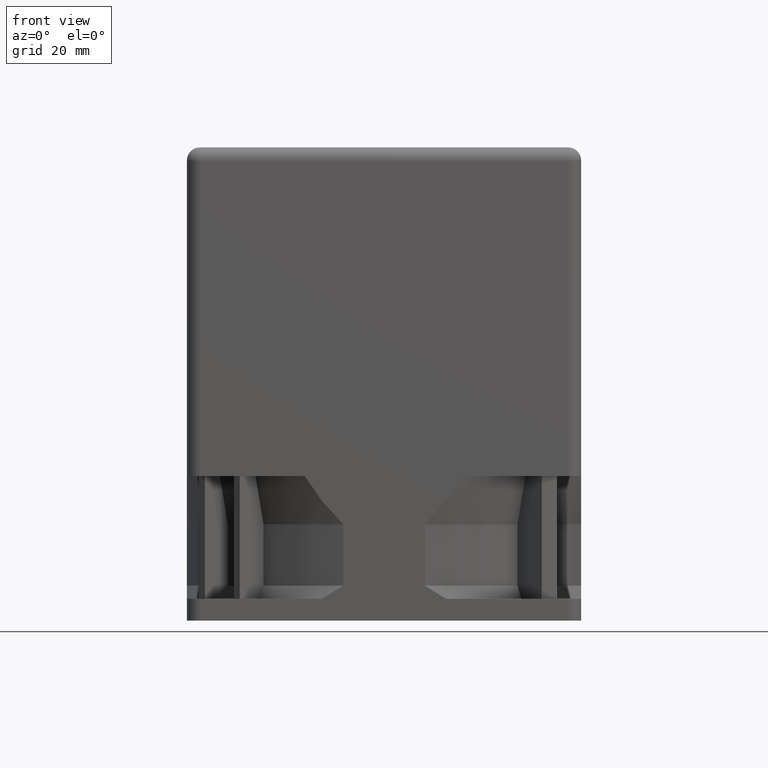
[diagram: clean part render]
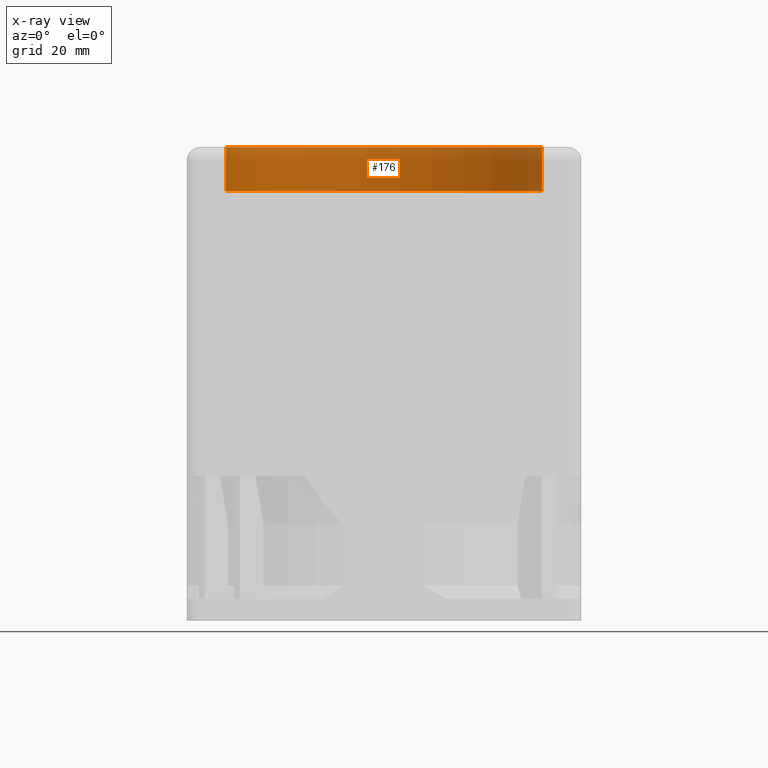
[diagram: x-ray — body ghosted, one internal face saturated and labeled with its STEP entity id]
A machine part, front view, then the same camera in x-ray: the body is ghosted and one INTERNAL B-rep face — a face not visible from any outside direction — is saturated and labeled: STEP entity #176.
In plain terms, the highlighted cylindrical surface (partial cylindrical patch) has radius 36.1 mm, axis along (-0, -0, 1).
Its self-contained STEP definition (entity closure, byte-faithful):
#176 = ADVANCED_FACE ( 'NONE', ( #2477 ), #7220, .F. ) ;
#191 = CIRCLE ( 'NONE', #6145, 36.10000000000000142 ) ;
#272 = DIRECTION ( 'NONE',  ( 1.000000000000000000, 0.000000000000000000, 0.000000000000000000 ) ) ;
#911 = ORIENTED_EDGE ( 'NONE', *, *, #6111, .T. ) ;
#1265 = CARTESIAN_POINT ( 'NONE',  ( 36.10000000000000142, 0.000000000000000000, 60.00000000000000711 ) ) ;
#1391 = DIRECTION ( 'NONE',  ( 0.000000000000000000, 0.000000000000000000, 1.000000000000000000 ) ) ;
#1426 = EDGE_CURVE ( 'NONE', #1918, #1504, #191, .T. ) ;
#1504 = VERTEX_POINT ( 'NONE', #3243 ) ;
#1918 = VERTEX_POINT ( 'NONE', #5041 ) ;
#2106 = ORIENTED_EDGE ( 'NONE', *, *, #1426, .F. ) ;
#2243 = CARTESIAN_POINT ( 'NONE',  ( 0.000000000000000000, 0.000000000000000000, 70.00000000000000000 ) ) ;
#2375 = DIRECTION ( 'NONE',  ( -0.000000000000000000, -0.000000000000000000, 1.000000000000000000 ) ) ;
#2420 = EDGE_LOOP ( 'NONE', ( #3679, #2106, #5753, #911 ) ) ;
#2477 = FACE_OUTER_BOUND ( 'NONE', #2420, .T. ) ;
#2564 = VECTOR ( 'NONE', #6580, 1000.000000000000000 ) ;
#2686 = CIRCLE ( 'NONE', #6872, 36.10000000000000142 ) ;
#3077 = AXIS2_PLACEMENT_3D ( 'NONE', #6160, #4200, #3564 ) ;
#3243 = CARTESIAN_POINT ( 'NONE',  ( -36.10000000000000142, 4.420974944921945790E-15, 60.00000000000000711 ) ) ;
#3564 = DIRECTION ( 'NONE',  ( 1.000000000000000000, 0.000000000000000000, 0.000000000000000000 ) ) ;
#3627 = LINE ( 'NONE', #7797, #7438 ) ;
#3679 = ORIENTED_EDGE ( 'NONE', *, *, #4758, .F. ) ;
#3854 = DIRECTION ( 'NONE',  ( 0.000000000000000000, 0.000000000000000000, 1.000000000000000000 ) ) ;
#4200 = DIRECTION ( 'NONE',  ( -0.000000000000000000, -0.000000000000000000, 1.000000000000000000 ) ) ;
#4758 = EDGE_CURVE ( 'NONE', #1504, #7402, #3627, .T. ) ;
#4809 = LINE ( 'NONE', #1265, #2564 ) ;
#4914 = CARTESIAN_POINT ( 'NONE',  ( -36.10000000000000142, 4.420974944921945790E-15, 70.00000000000000000 ) ) ;
#4947 = CARTESIAN_POINT ( 'NONE',  ( 36.10000000000000142, 0.000000000000000000, 70.00000000000000000 ) ) ;
#5041 = CARTESIAN_POINT ( 'NONE',  ( 36.10000000000000142, 0.000000000000000000, 60.00000000000000711 ) ) ;
#5099 = DIRECTION ( 'NONE',  ( 1.000000000000000000, 0.000000000000000000, 0.000000000000000000 ) ) ;
#5753 = ORIENTED_EDGE ( 'NONE', *, *, #7637, .T. ) ;
#5992 = VERTEX_POINT ( 'NONE', #4947 ) ;
#6111 = EDGE_CURVE ( 'NONE', #5992, #7402, #2686, .T. ) ;
#6145 = AXIS2_PLACEMENT_3D ( 'NONE', #6863, #1391, #272 ) ;
#6160 = CARTESIAN_POINT ( 'NONE',  ( 0.000000000000000000, 0.000000000000000000, 60.00000000000000711 ) ) ;
#6580 = DIRECTION ( 'NONE',  ( -0.000000000000000000, -0.000000000000000000, 1.000000000000000000 ) ) ;
#6863 = CARTESIAN_POINT ( 'NONE',  ( 0.000000000000000000, 0.000000000000000000, 60.00000000000000711 ) ) ;
#6872 = AXIS2_PLACEMENT_3D ( 'NONE', #2243, #3854, #5099 ) ;
#7220 = CYLINDRICAL_SURFACE ( 'NONE', #3077, 36.10000000000000142 ) ;
#7402 = VERTEX_POINT ( 'NONE', #4914 ) ;
#7438 = VECTOR ( 'NONE', #2375, 1000.000000000000000 ) ;
#7637 = EDGE_CURVE ( 'NONE', #1918, #5992, #4809, .T. ) ;
#7797 = CARTESIAN_POINT ( 'NONE',  ( -36.10000000000000142, 4.420974944921945790E-15, 60.00000000000000711 ) ) ;